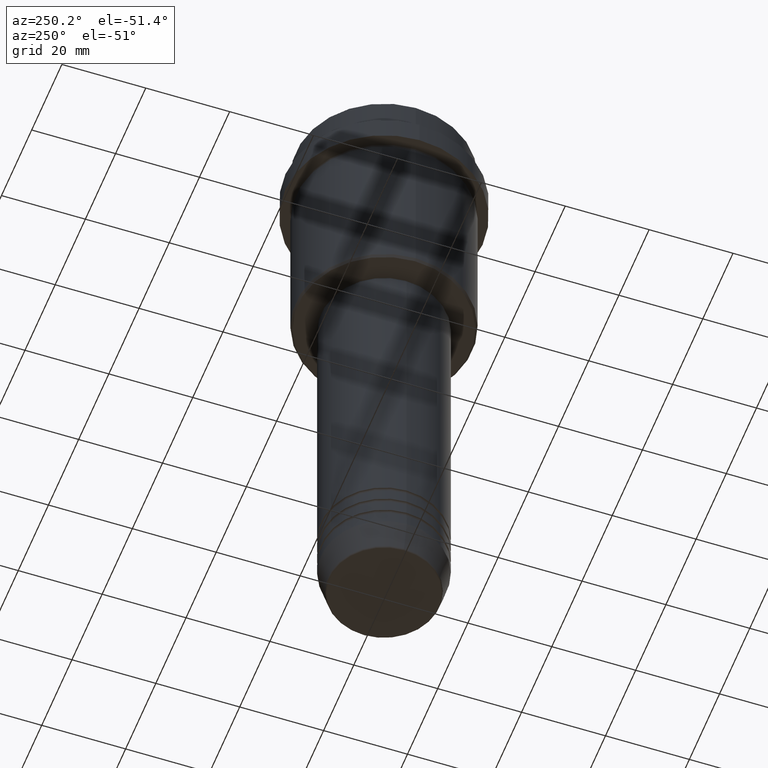
[diagram: clean part render]
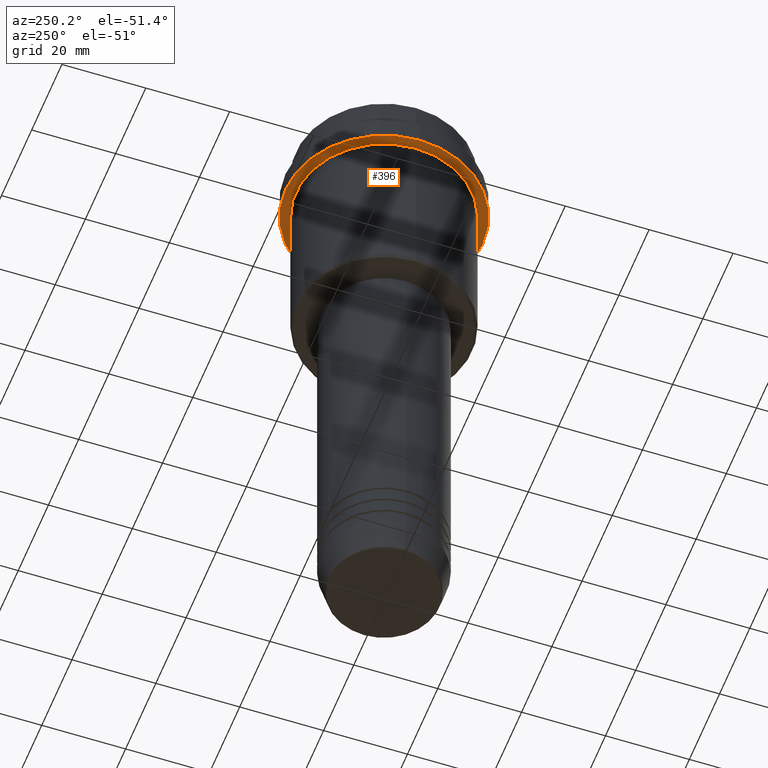
[diagram: same view with one face highlighted and labeled with its STEP entity id]
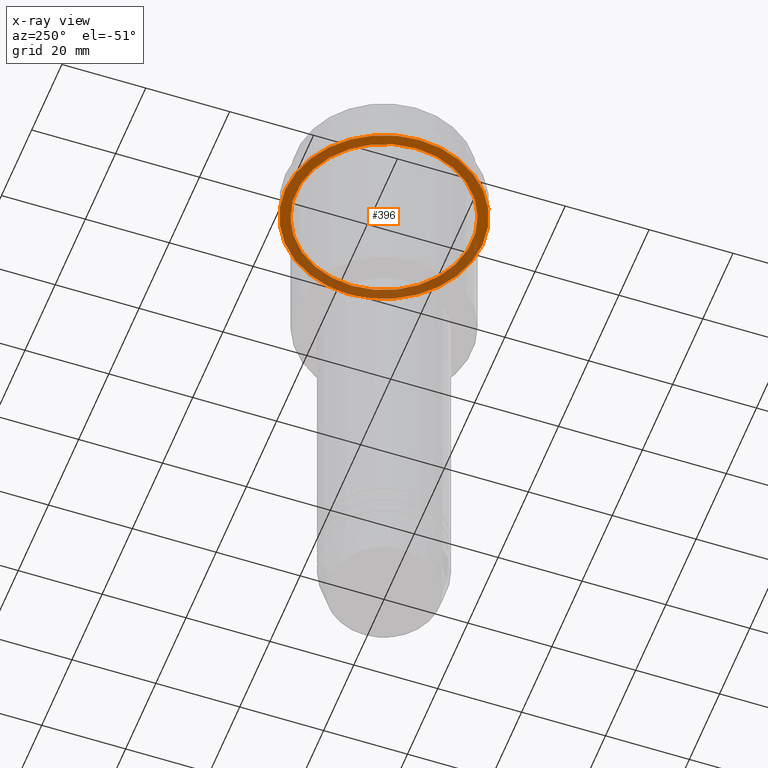
[diagram: x-ray of the same camera — body ghosted, the highlighted face saturated]
A machine part, auxiliary view. The second image highlights one B-rep face of the part: STEP entity #396.
The next image is the same camera in x-ray: the body ghosted, the highlighted face saturated — about 39% of this face is hidden behind the body in this view.
In plain terms, the highlighted planar face has unit normal (0, 0, -1).
Its self-contained STEP definition (entity closure, byte-faithful):
#13 = EDGE_CURVE ( 'NONE', #1231, #1368, #1057, .T. ) ;
#76 = DIRECTION ( 'NONE',  ( -1.000000000000000000, 0.000000000000000000, 0.000000000000000000 ) ) ;
#80 = CARTESIAN_POINT ( 'NONE',  ( 23.50000000000000355, 0.000000000000000000, -14.99999999999998757 ) ) ;
#83 = DIRECTION ( 'NONE',  ( -0.000000000000000000, -0.000000000000000000, 1.000000000000000000 ) ) ;
#152 = EDGE_CURVE ( 'NONE', #1075, #189, #1357, .T. ) ;
#180 = PLANE ( 'NONE',  #1199 ) ;
#185 = DIRECTION ( 'NONE',  ( -1.000000000000000000, 0.000000000000000000, -0.000000000000000000 ) ) ;
#189 = VERTEX_POINT ( 'NONE', #659 ) ;
#193 = DIRECTION ( 'NONE',  ( 1.000000000000000000, 0.000000000000000000, 0.000000000000000000 ) ) ;
#292 = DIRECTION ( 'NONE',  ( -0.000000000000000000, -0.000000000000000000, 1.000000000000000000 ) ) ;
#369 = CARTESIAN_POINT ( 'NONE',  ( 0.000000000000000000, 0.000000000000000000, -14.99999999999998757 ) ) ;
#386 = AXIS2_PLACEMENT_3D ( 'NONE', #369, #1054, #76 ) ;
#396 = ADVANCED_FACE ( 'NONE', ( #601, #1258 ), #180, .T. ) ;
#402 = AXIS2_PLACEMENT_3D ( 'NONE', #837, #292, #735 ) ;
#424 = CARTESIAN_POINT ( 'NONE',  ( 0.000000000000000000, 0.000000000000000000, -14.99999999999998757 ) ) ;
#456 = ORIENTED_EDGE ( 'NONE', *, *, #152, .F. ) ;
#534 = DIRECTION ( 'NONE',  ( 1.000000000000000000, 0.000000000000000000, 0.000000000000000000 ) ) ;
#574 = CIRCLE ( 'NONE', #386, 20.99999999999999289 ) ;
#601 = FACE_BOUND ( 'NONE', #1188, .T. ) ;
#659 = CARTESIAN_POINT ( 'NONE',  ( -23.50000000000000711, 2.877919977996281109E-15, -14.99999999999998757 ) ) ;
#660 = CIRCLE ( 'NONE', #778, 23.50000000000000355 ) ;
#735 = DIRECTION ( 'NONE',  ( -1.000000000000000000, 0.000000000000000000, 0.000000000000000000 ) ) ;
#778 = AXIS2_PLACEMENT_3D ( 'NONE', #424, #83, #193 ) ;
#784 = ORIENTED_EDGE ( 'NONE', *, *, #1340, .T. ) ;
#788 = EDGE_LOOP ( 'NONE', ( #456, #1009 ) ) ;
#835 = DIRECTION ( 'NONE',  ( 0.000000000000000000, 0.000000000000000000, -1.000000000000000000 ) ) ;
#837 = CARTESIAN_POINT ( 'NONE',  ( 0.000000000000000000, 0.000000000000000000, -14.99999999999998757 ) ) ;
#858 = CARTESIAN_POINT ( 'NONE',  ( 0.000000000000000000, 0.000000000000000000, -14.99999999999998757 ) ) ;
#979 = DIRECTION ( 'NONE',  ( -0.000000000000000000, -0.000000000000000000, 1.000000000000000000 ) ) ;
#1009 = ORIENTED_EDGE ( 'NONE', *, *, #1416, .F. ) ;
#1054 = DIRECTION ( 'NONE',  ( -0.000000000000000000, -0.000000000000000000, 1.000000000000000000 ) ) ;
#1057 = CIRCLE ( 'NONE', #402, 20.99999999999999289 ) ;
#1075 = VERTEX_POINT ( 'NONE', #80 ) ;
#1111 = CARTESIAN_POINT ( 'NONE',  ( -20.99999999999999289, 0.000000000000000000, -14.99999999999998757 ) ) ;
#1152 = AXIS2_PLACEMENT_3D ( 'NONE', #858, #979, #534 ) ;
#1188 = EDGE_LOOP ( 'NONE', ( #1385, #784 ) ) ;
#1199 = AXIS2_PLACEMENT_3D ( 'NONE', #1393, #835, #185 ) ;
#1231 = VERTEX_POINT ( 'NONE', #1111 ) ;
#1258 = FACE_OUTER_BOUND ( 'NONE', #788, .T. ) ;
#1340 = EDGE_CURVE ( 'NONE', #1368, #1231, #574, .T. ) ;
#1357 = CIRCLE ( 'NONE', #1152, 23.50000000000000355 ) ;
#1367 = CARTESIAN_POINT ( 'NONE',  ( 20.99999999999999289, 2.571758278209440872E-15, -14.99999999999998757 ) ) ;
#1368 = VERTEX_POINT ( 'NONE', #1367 ) ;
#1385 = ORIENTED_EDGE ( 'NONE', *, *, #13, .T. ) ;
#1393 = CARTESIAN_POINT ( 'NONE',  ( 0.000000000000000000, 23.50000000000000355, -14.99999999999998757 ) ) ;
#1416 = EDGE_CURVE ( 'NONE', #189, #1075, #660, .T. ) ;